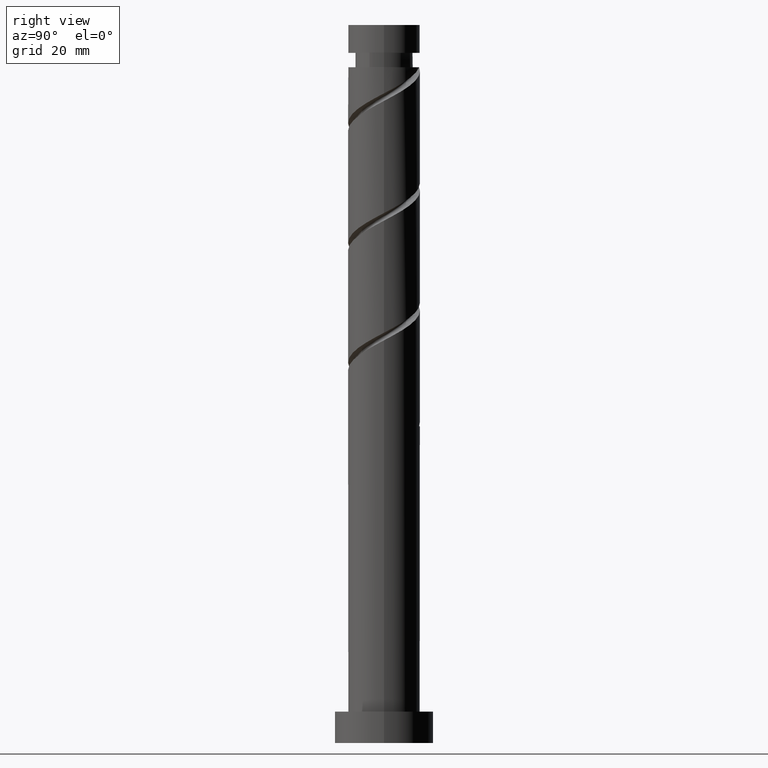
[diagram: clean part render]
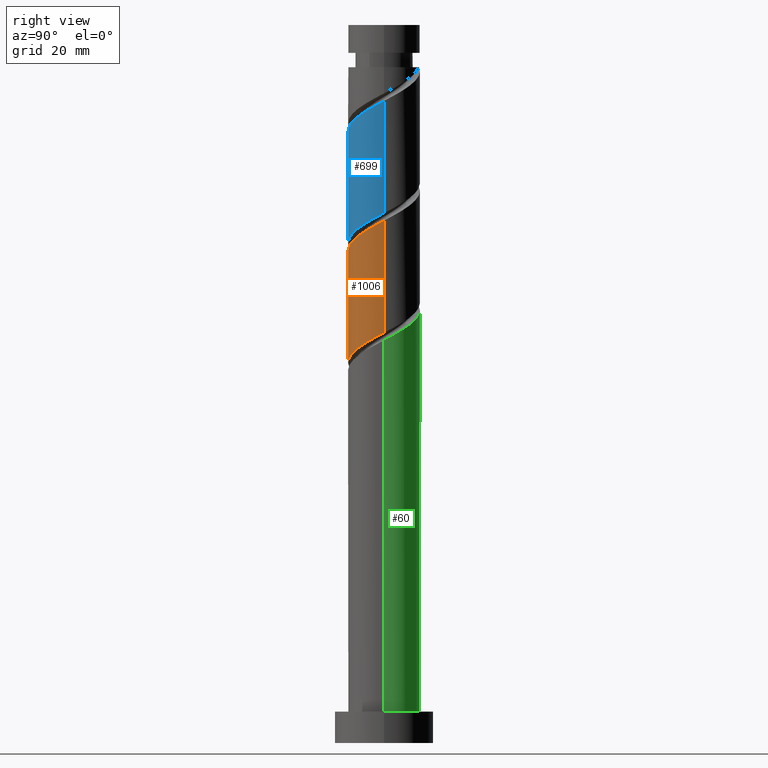
[diagram: same view with three faces highlighted in distinct colors, each labeled with its STEP entity id]
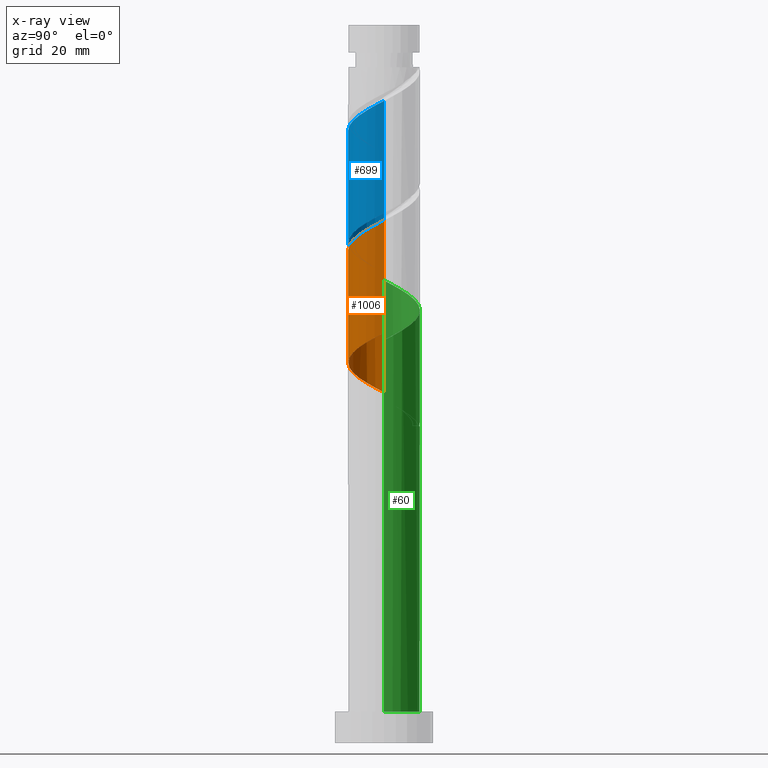
[diagram: x-ray of the same camera — body ghosted, the three highlighted faces saturated]
A machine part, right view with three faces highlighted in distinct colors.
The next image is the same camera in x-ray (body ghosted, the three faces saturated) — at least one of them is partly hidden behind the body in this view.
Their STEP definitions:

[orange] entity #1006 — the highlighted cylindrical surface (edge-blend (fillet) strip) has radius 8 mm, axis along (-0, -0, -1).
#30 = CARTESIAN_POINT ( 'NONE',  ( 4.882551537609416847, -6.337246285460896189, 87.55918416526581893 ) ) ;
#64 = CARTESIAN_POINT ( 'NONE',  ( -4.882551537609425729, -6.337246285460905071, 106.9531235592051956 ) ) ;
#71 = CARTESIAN_POINT ( 'NONE',  ( 5.577882723393632780, -5.734738383227871772, 113.0137296198112580 ) ) ;
#101 = CYLINDRICAL_SURFACE ( 'NONE', #511, 8.000000000000000000 ) ;
#128 = VERTEX_POINT ( 'NONE', #589 ) ;
#147 = CARTESIAN_POINT ( 'NONE',  ( 3.971393078059867854, -7.039251215880911516, 86.95312355920522407 ) ) ;
#164 = CARTESIAN_POINT ( 'NONE',  ( 2.899365294310145114, -7.456117011565057240, 86.34706295314458657 ) ) ;
#178 = CARTESIAN_POINT ( 'NONE',  ( -7.986762466259771820, -0.4600275073779067081, 103.3167599228415696 ) ) ;
#194 = CARTESIAN_POINT ( 'NONE',  ( 3.736276773218410341, -7.073912345647833000, 111.8016084076900114 ) ) ;
#200 = CARTESIAN_POINT ( 'NONE',  ( 7.532789951889100166, -2.929180124448060418, 114.8319114379930710 ) ) ;
#255 = CARTESIAN_POINT ( 'NONE',  ( -4.753351822145628347, -6.536716845301434375, 82.10463871072037989 ) ) ;
#274 = CARTESIAN_POINT ( 'NONE',  ( 5.793709997158966729, -5.635241355040879085, 88.16524477132642801 ) ) ;
#288 = EDGE_CURVE ( 'NONE', #1253, #128, #1493, .T. ) ;
#302 = CARTESIAN_POINT ( 'NONE',  ( -8.000000000000000000, 0.000000000000000000, 160.0000000000000000 ) ) ;
#323 = CARTESIAN_POINT ( 'NONE',  ( -1.827337510560426148, -7.872982807249216286, 108.7713053773870371 ) ) ;
#330 = CARTESIAN_POINT ( 'NONE',  ( -3.971393078059877180, -7.039251215880920398, 107.5591841652657905 ) ) ;
#342 = DIRECTION ( 'NONE',  ( -1.000000000000000000, 0.000000000000000000, 0.000000000000000000 ) ) ;
#359 = VERTEX_POINT ( 'NONE', #496 ) ;
#383 = CARTESIAN_POINT ( 'NONE',  ( 8.000000000000001776, -0.2302042121905966410, 91.31684367015148496 ) ) ;
#407 = CARTESIAN_POINT ( 'NONE',  ( -0.4647580744500044991, -8.068892154005792960, 84.52888113496274514 ) ) ;
#416 = CARTESIAN_POINT ( 'NONE',  ( -6.402413624641619450, -4.932759921154289628, 80.89251749859911911 ) ) ;
#441 = LINE ( 'NONE', #302, #1503 ) ;
#473 = DIRECTION ( 'NONE',  ( -0.000000000000000000, -0.000000000000000000, -1.000000000000000000 ) ) ;
#496 = CARTESIAN_POINT ( 'NONE',  ( -8.000000000000012434, -5.324628170444731616E-15, 103.0733660496012618 ) ) ;
#506 = ORIENTED_EDGE ( 'NONE', *, *, #980, .F. ) ;
#511 = AXIS2_PLACEMENT_3D ( 'NONE', #1629, #473, #342 ) ;
#528 = CARTESIAN_POINT ( 'NONE',  ( -1.591979899370594476, -7.840000000000000746, 83.92282052890215027 ) ) ;
#548 = CARTESIAN_POINT ( 'NONE',  ( -6.967601788265351814, -3.930970022801174135, 80.28645689253851003 ) ) ;
#555 = CARTESIAN_POINT ( 'NONE',  ( 4.753351822145639005, -6.536716845301444145, 112.4076690137506631 ) ) ;
#585 = DIRECTION ( 'NONE',  ( -0.000000000000000000, -0.000000000000000000, -1.000000000000000000 ) ) ;
#589 = CARTESIAN_POINT ( 'NONE',  ( 8.000000000000000000, -9.183487911946886666E-15, 91.43894167486969593 ) ) ;
#598 = ORIENTED_EDGE ( 'NONE', *, *, #796, .F. ) ;
#643 = EDGE_LOOP ( 'NONE', ( #1239, #506, #750, #598 ) ) ;
#662 = CARTESIAN_POINT ( 'NONE',  ( 7.533637742433263895, -2.691524171503018259, 89.98342658950821260 ) ) ;
#671 = CARTESIAN_POINT ( 'NONE',  ( 6.470182492983646227, -4.704969554363545470, 88.77130537738702287 ) ) ;
#720 = CARTESIAN_POINT ( 'NONE',  ( 7.792847194175212877, -1.808737849506034889, 115.4379720440536943 ) ) ;
#750 = ORIENTED_EDGE ( 'NONE', *, *, #932, .T. ) ;
#767 = CARTESIAN_POINT ( 'NONE',  ( 8.000000000000014211, -0.9162314190809818237, 115.9207394299632767 ) ) ;
#776 = CARTESIAN_POINT ( 'NONE',  ( -7.532789951889085067, -2.929180124448055089, 79.68039628647792938 ) ) ;
#796 = EDGE_CURVE ( 'NONE', #128, #961, #930, .T. ) ;
#800 = CARTESIAN_POINT ( 'NONE',  ( -8.000000000000000000, -0.9162314190809786041, 78.59156829450766679 ) ) ;
#808 = CARTESIAN_POINT ( 'NONE',  ( 7.146654988808328390, -3.774697753686215851, 89.37736598344761774 ) ) ;
#825 = CARTESIAN_POINT ( 'NONE',  ( -6.470182492983659550, -4.704969554363554352, 105.7410023470839775 ) ) ;
#841 = CARTESIAN_POINT ( 'NONE',  ( 0.4647580744500016126, -8.068892154005805395, 109.9834265895082268 ) ) ;
#846 = CARTESIAN_POINT ( 'NONE',  ( 6.967601788265361584, -3.930970022801182573, 114.2258508319325045 ) ) ;
#891 = CARTESIAN_POINT ( 'NONE',  ( 8.000000000000000000, 9.797174393178825657E-16, 160.0000000000000000 ) ) ;
#912 = CARTESIAN_POINT ( 'NONE',  ( 1.827337510560423262, -7.872982807249202075, 85.74100234708396329 ) ) ;
#930 =( BOUNDED_CURVE ( )  B_SPLINE_CURVE ( 2, ( #1050, #383, #1431, #1306, #662, #808, #671, #274, #30, #147, #164, #912, #1181, #407, #528, #1447, #1560, #255, #1041, #416, #548, #776, #1549, #800, #1059 ),
 .UNSPECIFIED., .F., .T. ) 
 B_SPLINE_CURVE_WITH_KNOTS ( ( 3, 2, 2, 2, 2, 2, 2, 2, 2, 2, 2, 2, 3 ),
 ( 0.8045252162417514397, 0.8068181818181817677, 0.8181818181818182323, 0.8295454545454545858, 0.8409090909090909394, 0.8522727272727272929, 0.8636363636363636465, 0.8750000000000000000, 0.8863636363636363535, 0.8977272727272727071, 0.9090909090909090606, 0.9204545454545454142, 0.9295252162417513286 ),
 .UNSPECIFIED. ) 
 CURVE ( )  GEOMETRIC_REPRESENTATION_ITEM ( )  RATIONAL_B_SPLINE_CURVE ( ( 0.9061101570135516869, 0.9072237824201337952, 0.9090909090909111701, 0.8998376744372136304, 0.9090909090909111701, 0.8998376744372136304, 0.9090909090909111701, 0.8998376744372136304, 0.9090909090909111701, 0.8998376744372136304, 0.9090909090909111701, 0.8998376744372136304, 0.9090909090909111701, 0.8998376744372136304, 0.9090909090909111701, 0.8998376744372136304, 0.9090909090909111701, 0.8998376744372136304, 0.9090909090909111701, 0.8998376744372136304, 0.9090909090909111701, 0.8998376744372136304, 0.9090909090909111701, 0.9017048011079911163, 0.9061101570135515759 ) ) 
 REPRESENTATION_ITEM ( '' )  );
#932 = EDGE_CURVE ( 'NONE', #359, #961, #441, .T. ) ;
#958 = CARTESIAN_POINT ( 'NONE',  ( -0.6812897180552121013, -7.970937480627512173, 109.3773659834476035 ) ) ;
#961 = VERTEX_POINT ( 'NONE', #1220 ) ;
#966 = CARTESIAN_POINT ( 'NONE',  ( 1.591979899370593365, -7.840000000000012292, 110.5894871955688217 ) ) ;
#980 = EDGE_CURVE ( 'NONE', #359, #1253, #1104, .T. ) ;
#1006 = ADVANCED_FACE ( 'NONE', ( #1490 ), #101, .T. ) ;
#1029 = VECTOR ( 'NONE', #1526, 1000.000000000000000 ) ;
#1041 = CARTESIAN_POINT ( 'NONE',  ( -5.577882723393626563, -5.734738383227862002, 81.49857810465975660 ) ) ;
#1050 = CARTESIAN_POINT ( 'NONE',  ( 8.000000000000000000, -9.183487911946886666E-15, 91.43894167486969593 ) ) ;
#1059 = CARTESIAN_POINT ( 'NONE',  ( -8.000000000000000000, 7.508323993155271420E-15, 78.10560834153638154 ) ) ;
#1092 = CARTESIAN_POINT ( 'NONE',  ( -7.533637742433276330, -2.691524171503020924, 104.5288811349627593 ) ) ;
#1104 =( BOUNDED_CURVE ( )  B_SPLINE_CURVE ( 2, ( #1584, #1234, #178, #1464, #1092, #1206, #825, #1338, #64, #330, #1598, #323, #958, #841, #966, #1354, #194, #555, #71, #1485, #846, #200, #720, #767, #1395 ),
 .UNSPECIFIED., .F., .T. ) 
 B_SPLINE_CURVE_WITH_KNOTS ( ( 3, 2, 2, 2, 2, 2, 2, 2, 2, 2, 2, 2, 3 ),
 ( 0.3045252162417512731, 0.3068181818181817677, 0.3181818181818182323, 0.3295454545454545858, 0.3409090909090909394, 0.3522727272727272929, 0.3636363636363636465, 0.3750000000000000000, 0.3863636363636363535, 0.3977272727272727071, 0.4090909090909090606, 0.4204545454545454142, 0.4295252162417513286 ),
 .UNSPECIFIED. ) 
 CURVE ( )  GEOMETRIC_REPRESENTATION_ITEM ( )  RATIONAL_B_SPLINE_CURVE ( ( 0.9061101570135589034, 0.9072237824201411227, 0.9090909090909186085, 0.8998376744372208469, 0.9090909090909186085, 0.8998376744372208469, 0.9090909090909186085, 0.8998376744372208469, 0.9090909090909186085, 0.8998376744372208469, 0.9090909090909186085, 0.8998376744372208469, 0.9090909090909186085, 0.8998376744372208469, 0.9090909090909186085, 0.8998376744372208469, 0.9090909090909186085, 0.8998376744372208469, 0.9090909090909186085, 0.8998376744372208469, 0.9090909090909186085, 0.8998376744372208469, 0.9090909090909186085, 0.9017048011079983327, 0.9061101570135590144 ) ) 
 REPRESENTATION_ITEM ( '' )  );
#1181 = CARTESIAN_POINT ( 'NONE',  ( 0.6812897180552074383, -7.970937480627497074, 85.13494174102338263 ) ) ;
#1206 = CARTESIAN_POINT ( 'NONE',  ( -7.146654988808340825, -3.774697753686220736, 105.1349417410233826 ) ) ;
#1220 = CARTESIAN_POINT ( 'NONE',  ( -8.000000000000000000, 7.508323993155271420E-15, 78.10560834153638154 ) ) ;
#1234 = CARTESIAN_POINT ( 'NONE',  ( -8.000000000000014211, -0.2302042121905765182, 103.1954640543194870 ) ) ;
#1239 = ORIENTED_EDGE ( 'NONE', *, *, #288, .F. ) ;
#1253 = VERTEX_POINT ( 'NONE', #1420 ) ;
#1306 = CARTESIAN_POINT ( 'NONE',  ( 7.920620496058202953, -1.608350589319822221, 90.58948719556882168 ) ) ;
#1338 = CARTESIAN_POINT ( 'NONE',  ( -5.793709997158975611, -5.635241355040887967, 106.3470629531445724 ) ) ;
#1354 = CARTESIAN_POINT ( 'NONE',  ( 2.719201724291186117, -7.611107845994222743, 111.1955478016294308 ) ) ;
#1395 = CARTESIAN_POINT ( 'NONE',  ( 8.000000000000012434, 4.935750832153824991E-15, 116.4066993829346046 ) ) ;
#1420 = CARTESIAN_POINT ( 'NONE',  ( 8.000000000000012434, 4.935750832153824202E-15, 116.4066993829346046 ) ) ;
#1431 = CARTESIAN_POINT ( 'NONE',  ( 7.986762466259759385, -0.4600275073779094837, 91.19554780162941654 ) ) ;
#1447 = CARTESIAN_POINT ( 'NONE',  ( -2.719201724291183453, -7.611107845994205867, 83.31675992284155541 ) ) ;
#1464 = CARTESIAN_POINT ( 'NONE',  ( -7.920620496058218052, -1.608350589319821777, 103.9228205289021645 ) ) ;
#1485 = CARTESIAN_POINT ( 'NONE',  ( 6.402413624641629220, -4.932759921154301175, 113.6197902258718528 ) ) ;
#1490 = FACE_OUTER_BOUND ( 'NONE', #643, .T. ) ;
#1493 = LINE ( 'NONE', #891, #1029 ) ;
#1503 = VECTOR ( 'NONE', #585, 1000.000000000000000 ) ;
#1526 = DIRECTION ( 'NONE',  ( -0.000000000000000000, -0.000000000000000000, -1.000000000000000000 ) ) ;
#1549 = CARTESIAN_POINT ( 'NONE',  ( -7.792847194175199554, -1.808737849506030448, 79.07433568041730609 ) ) ;
#1560 = CARTESIAN_POINT ( 'NONE',  ( -3.736276773218406788, -7.073912345647821454, 82.71069931678096054 ) ) ;
#1584 = CARTESIAN_POINT ( 'NONE',  ( -8.000000000000012434, -5.324628170444731616E-15, 103.0733660496012618 ) ) ;
#1598 = CARTESIAN_POINT ( 'NONE',  ( -2.899365294310152219, -7.456117011565067898, 108.1652447713263854 ) ) ;
#1629 = CARTESIAN_POINT ( 'NONE',  ( 0.000000000000000000, 0.000000000000000000, 160.0000000000000000 ) ) ;

[blue] entity #699 — the highlighted cylindrical surface (edge-blend (fillet) strip) has radius 8 mm, axis along (-0, -0, -1).
#27 = VECTOR ( 'NONE', #94, 1000.000000000000000 ) ;
#50 = CARTESIAN_POINT ( 'NONE',  ( -4.882551537609425729, -6.337246285460905071, 133.6197902258718955 ) ) ;
#94 = DIRECTION ( 'NONE',  ( -0.000000000000000000, -0.000000000000000000, -1.000000000000000000 ) ) ;
#103 = CARTESIAN_POINT ( 'NONE',  ( 6.470182492983646227, -4.704969554363545470, 115.4379720440536943 ) ) ;
#115 = CARTESIAN_POINT ( 'NONE',  ( -6.402413624641619450, -4.932759921154289628, 107.5591841652658189 ) ) ;
#130 = CARTESIAN_POINT ( 'NONE',  ( -7.532789951889085067, -2.929180124448055089, 106.3470629531445866 ) ) ;
#134 = VECTOR ( 'NONE', #1137, 1000.000000000000000 ) ;
#190 = CARTESIAN_POINT ( 'NONE',  ( -5.793709997158975611, -5.635241355040887967, 133.0137296198112153 ) ) ;
#191 = EDGE_CURVE ( 'NONE', #1401, #1109, #1573, .T. ) ;
#197 = CARTESIAN_POINT ( 'NONE',  ( -0.6812897180552121013, -7.970937480627512173, 136.0440326501142465 ) ) ;
#203 = CARTESIAN_POINT ( 'NONE',  ( 5.577882723393632780, -5.734738383227871772, 139.6803962864779578 ) ) ;
#240 = CARTESIAN_POINT ( 'NONE',  ( -5.577882723393626563, -5.734738383227862002, 108.1652447713264138 ) ) ;
#248 = CARTESIAN_POINT ( 'NONE',  ( 8.000000000000001776, -0.2302042121905854000, 117.9835103368181848 ) ) ;
#276 = VERTEX_POINT ( 'NONE', #1650 ) ;
#284 = DIRECTION ( 'NONE',  ( -0.000000000000000000, -0.000000000000000000, -1.000000000000000000 ) ) ;
#364 = CARTESIAN_POINT ( 'NONE',  ( 1.827337510560423262, -7.872982807249202075, 112.4076690137506631 ) ) ;
#445 = CARTESIAN_POINT ( 'NONE',  ( -7.920620496058218052, -1.608350589319821777, 130.5894871955688359 ) ) ;
#535 = EDGE_CURVE ( 'NONE', #1109, #276, #996, .T. ) ;
#565 = CARTESIAN_POINT ( 'NONE',  ( -2.899365294310152219, -7.456117011565067898, 134.8319114379930568 ) ) ;
#621 = CARTESIAN_POINT ( 'NONE',  ( 3.971393078059867854, -7.039251215880911516, 113.6197902258718671 ) ) ;
#630 = LINE ( 'NONE', #1262, #134 ) ;
#632 = CARTESIAN_POINT ( 'NONE',  ( -6.967601788265351814, -3.930970022801174135, 106.9531235592052099 ) ) ;
#640 = CARTESIAN_POINT ( 'NONE',  ( 8.000000000000000000, 9.797174393178825657E-16, 160.0000000000000000 ) ) ;
#689 = EDGE_CURVE ( 'NONE', #276, #1521, #764, .T. ) ;
#692 = CARTESIAN_POINT ( 'NONE',  ( -7.986762466259771820, -0.4600275073779067081, 129.9834265895082126 ) ) ;
#699 = ADVANCED_FACE ( 'NONE', ( #783 ), #1314, .T. ) ;
#700 = CARTESIAN_POINT ( 'NONE',  ( 6.967601788265361584, -3.930970022801182573, 140.8925174985991475 ) ) ;
#717 = CARTESIAN_POINT ( 'NONE',  ( 7.792847194175212877, -1.808737849506034889, 142.1046387107203088 ) ) ;
#729 = CARTESIAN_POINT ( 'NONE',  ( 0.6812897180552074383, -7.970937480627497074, 111.8016084076900540 ) ) ;
#764 =( BOUNDED_CURVE ( )  B_SPLINE_CURVE ( 2, ( #1492, #248, #769, #1157, #1118, #854, #103, #1518, #1369, #621, #1640, #364, #729, #1249, #985, #1500, #880, #1397, #240, #115, #632, #130, #1189, #897, #904 ),
 .UNSPECIFIED., .F., .T. ) 
 B_SPLINE_CURVE_WITH_KNOTS ( ( 3, 2, 2, 2, 2, 2, 2, 2, 2, 2, 2, 2, 3 ),
 ( 0.5545252162417513286, 0.5568181818181817677, 0.5681818181818182323, 0.5795454545454545858, 0.5909090909090909394, 0.6022727272727272929, 0.6136363636363636465, 0.6250000000000000000, 0.6363636363636363535, 0.6477272727272727071, 0.6590909090909090606, 0.6704545454545454142, 0.6795252162417513286 ),
 .UNSPECIFIED. ) 
 CURVE ( )  GEOMETRIC_REPRESENTATION_ITEM ( )  RATIONAL_B_SPLINE_CURVE ( ( 0.9061101570135515759, 0.9072237824201336842, 0.9090909090909111701, 0.8998376744372136304, 0.9090909090909111701, 0.8998376744372136304, 0.9090909090909111701, 0.8998376744372136304, 0.9090909090909111701, 0.8998376744372136304, 0.9090909090909111701, 0.8998376744372136304, 0.9090909090909111701, 0.8998376744372136304, 0.9090909090909111701, 0.8998376744372136304, 0.9090909090909111701, 0.8998376744372136304, 0.9090909090909111701, 0.8998376744372136304, 0.9090909090909111701, 0.8998376744372136304, 0.9090909090909111701, 0.9017048011079911163, 0.9061101570135515759 ) ) 
 REPRESENTATION_ITEM ( '' )  );
#769 = CARTESIAN_POINT ( 'NONE',  ( 7.986762466259759385, -0.4600275073779094837, 117.8622144682961022 ) ) ;
#783 = FACE_OUTER_BOUND ( 'NONE', #1383, .T. ) ;
#828 = CARTESIAN_POINT ( 'NONE',  ( -7.146654988808340825, -3.774697753686220736, 131.8016084076900540 ) ) ;
#836 = CARTESIAN_POINT ( 'NONE',  ( 3.736276773218410341, -7.073912345647833000, 138.4682750743567112 ) ) ;
#849 = CARTESIAN_POINT ( 'NONE',  ( -8.000000000000012434, -5.324628170444731616E-15, 129.7400327162679332 ) ) ;
#854 = CARTESIAN_POINT ( 'NONE',  ( 7.146654988808328390, -3.774697753686215851, 116.0440326501142749 ) ) ;
#860 = CARTESIAN_POINT ( 'NONE',  ( 8.000000000000012434, 4.935750832153824202E-15, 143.0733660496012476 ) ) ;
#866 = ORIENTED_EDGE ( 'NONE', *, *, #689, .F. ) ;
#880 = CARTESIAN_POINT ( 'NONE',  ( -3.736276773218406788, -7.073912345647821454, 109.3773659834476035 ) ) ;
#897 = CARTESIAN_POINT ( 'NONE',  ( -8.000000000000000000, -0.9162314190809786041, 105.2582349611743382 ) ) ;
#904 = CARTESIAN_POINT ( 'NONE',  ( -8.000000000000000000, 7.508323993155271420E-15, 104.7722750082030387 ) ) ;
#946 = CARTESIAN_POINT ( 'NONE',  ( -7.533637742433276330, -2.691524171503020924, 131.1955478016294592 ) ) ;
#985 = CARTESIAN_POINT ( 'NONE',  ( -1.591979899370594476, -7.840000000000000746, 110.5894871955688217 ) ) ;
#996 = LINE ( 'NONE', #640, #27 ) ;
#1079 = CARTESIAN_POINT ( 'NONE',  ( 6.402413624641629220, -4.932759921154301175, 140.2864568925384674 ) ) ;
#1095 = CARTESIAN_POINT ( 'NONE',  ( 8.000000000000012434, -0.9162314190809907055, 142.5874060966299339 ) ) ;
#1096 = CARTESIAN_POINT ( 'NONE',  ( -8.000000000000000000, 7.508323993155271420E-15, 104.7722750082030387 ) ) ;
#1101 = CARTESIAN_POINT ( 'NONE',  ( -3.971393078059877180, -7.039251215880920398, 134.2258508319324619 ) ) ;
#1109 = VERTEX_POINT ( 'NONE', #860 ) ;
#1118 = CARTESIAN_POINT ( 'NONE',  ( 7.533637742433263895, -2.691524171503018259, 116.6500932561748840 ) ) ;
#1135 = EDGE_CURVE ( 'NONE', #1401, #1521, #630, .T. ) ;
#1137 = DIRECTION ( 'NONE',  ( -0.000000000000000000, -0.000000000000000000, -1.000000000000000000 ) ) ;
#1157 = CARTESIAN_POINT ( 'NONE',  ( 7.920620496058202953, -1.608350589319822221, 117.2561538622355073 ) ) ;
#1164 = AXIS2_PLACEMENT_3D ( 'NONE', #1440, #284, #1423 ) ;
#1189 = CARTESIAN_POINT ( 'NONE',  ( -7.792847194175199554, -1.808737849506030448, 105.7410023470839775 ) ) ;
#1216 = CARTESIAN_POINT ( 'NONE',  ( 8.000000000000012434, 4.935750832153824202E-15, 143.0733660496012476 ) ) ;
#1249 = CARTESIAN_POINT ( 'NONE',  ( -0.4647580744500044991, -8.068892154005792960, 111.1955478016294308 ) ) ;
#1262 = CARTESIAN_POINT ( 'NONE',  ( -8.000000000000000000, 0.000000000000000000, 160.0000000000000000 ) ) ;
#1297 = ORIENTED_EDGE ( 'NONE', *, *, #191, .F. ) ;
#1314 = CYLINDRICAL_SURFACE ( 'NONE', #1164, 8.000000000000000000 ) ;
#1334 = CARTESIAN_POINT ( 'NONE',  ( -8.000000000000014211, -0.2302042121905732430, 129.8621307209861584 ) ) ;
#1342 = CARTESIAN_POINT ( 'NONE',  ( -1.827337510560426148, -7.872982807249216286, 135.4379720440536801 ) ) ;
#1365 = CARTESIAN_POINT ( 'NONE',  ( 2.719201724291186117, -7.611107845994222743, 137.8622144682960879 ) ) ;
#1369 = CARTESIAN_POINT ( 'NONE',  ( 4.882551537609416847, -6.337246285460896189, 114.2258508319324903 ) ) ;
#1383 = EDGE_LOOP ( 'NONE', ( #1552, #1297, #1538, #866 ) ) ;
#1397 = CARTESIAN_POINT ( 'NONE',  ( -4.753351822145628347, -6.536716845301434375, 108.7713053773870513 ) ) ;
#1401 = VERTEX_POINT ( 'NONE', #1438 ) ;
#1423 = DIRECTION ( 'NONE',  ( -1.000000000000000000, 0.000000000000000000, 0.000000000000000000 ) ) ;
#1438 = CARTESIAN_POINT ( 'NONE',  ( -8.000000000000012434, -5.324628170444731616E-15, 129.7400327162679332 ) ) ;
#1440 = CARTESIAN_POINT ( 'NONE',  ( 0.000000000000000000, 0.000000000000000000, 160.0000000000000000 ) ) ;
#1458 = CARTESIAN_POINT ( 'NONE',  ( 0.4647580744500016126, -8.068892154005805395, 136.6500932561749266 ) ) ;
#1474 = CARTESIAN_POINT ( 'NONE',  ( -6.470182492983659550, -4.704969554363554352, 132.4076690137506205 ) ) ;
#1492 = CARTESIAN_POINT ( 'NONE',  ( 8.000000000000000000, -9.183487911946886666E-15, 118.1056083415363815 ) ) ;
#1500 = CARTESIAN_POINT ( 'NONE',  ( -2.719201724291183453, -7.611107845994205867, 109.9834265895082268 ) ) ;
#1518 = CARTESIAN_POINT ( 'NONE',  ( 5.793709997158966729, -5.635241355040879085, 114.8319114379930710 ) ) ;
#1521 = VERTEX_POINT ( 'NONE', #1096 ) ;
#1538 = ORIENTED_EDGE ( 'NONE', *, *, #1135, .T. ) ;
#1552 = ORIENTED_EDGE ( 'NONE', *, *, #535, .F. ) ;
#1573 =( BOUNDED_CURVE ( )  B_SPLINE_CURVE ( 2, ( #849, #1334, #692, #445, #946, #828, #1474, #190, #50, #1101, #565, #1342, #197, #1458, #1609, #1365, #836, #1602, #203, #1079, #700, #1588, #717, #1095, #1216 ),
 .UNSPECIFIED., .F., .T. ) 
 B_SPLINE_CURVE_WITH_KNOTS ( ( 3, 2, 2, 2, 2, 2, 2, 2, 2, 2, 2, 2, 3 ),
 ( 0.5545252162417513286, 0.5568181818181818787, 0.5681818181818181213, 0.5795454545454545858, 0.5909090909090908283, 0.6022727272727272929, 0.6136363636363636465, 0.6250000000000000000, 0.6363636363636363535, 0.6477272727272727071, 0.6590909090909091717, 0.6704545454545454142, 0.6795252162417513286 ),
 .UNSPECIFIED. ) 
 CURVE ( )  GEOMETRIC_REPRESENTATION_ITEM ( )  RATIONAL_B_SPLINE_CURVE ( ( 0.9061101570135589034, 0.9072237824201410117, 0.9090909090909186085, 0.8998376744372208469, 0.9090909090909186085, 0.8998376744372208469, 0.9090909090909186085, 0.8998376744372208469, 0.9090909090909186085, 0.8998376744372208469, 0.9090909090909186085, 0.8998376744372208469, 0.9090909090909186085, 0.8998376744372208469, 0.9090909090909186085, 0.8998376744372208469, 0.9090909090909186085, 0.8998376744372208469, 0.9090909090909186085, 0.8998376744372208469, 0.9090909090909186085, 0.8998376744372208469, 0.9090909090909186085, 0.9017048011079984438, 0.9061101570135589034 ) ) 
 REPRESENTATION_ITEM ( '' )  );
#1588 = CARTESIAN_POINT ( 'NONE',  ( 7.532789951889100166, -2.929180124448060418, 141.4985781046597140 ) ) ;
#1602 = CARTESIAN_POINT ( 'NONE',  ( 4.753351822145639005, -6.536716845301444145, 139.0743356804173345 ) ) ;
#1609 = CARTESIAN_POINT ( 'NONE',  ( 1.591979899370593365, -7.840000000000012292, 137.2561538622354647 ) ) ;
#1640 = CARTESIAN_POINT ( 'NONE',  ( 2.899365294310145114, -7.456117011565057240, 113.0137296198112580 ) ) ;
#1650 = CARTESIAN_POINT ( 'NONE',  ( 8.000000000000000000, -9.183487911946886666E-15, 118.1056083415363815 ) ) ;

[green] entity #60 — the highlighted cylindrical surface (edge-blend (fillet) strip) has radius 8 mm, axis along (-0, -0, -1).
#8 = CARTESIAN_POINT ( 'NONE',  ( 8.000000000000012434, 4.935750832153824202E-15, 89.74003271626796163 ) ) ;
#34 = DIRECTION ( 'NONE',  ( -1.000000000000000000, 0.000000000000000000, 0.000000000000000000 ) ) ;
#60 = ADVANCED_FACE ( 'NONE', ( #804 ), #916, .T. ) ;
#116 = CARTESIAN_POINT ( 'NONE',  ( 8.000000000000000000, 9.797174393178825657E-16, 7.000000000000000000 ) ) ;
#123 = CARTESIAN_POINT ( 'NONE',  ( -7.920620496058202953, 1.608350589319821333, 77.25615386223550729 ) ) ;
#125 = ORIENTED_EDGE ( 'NONE', *, *, #1339, .T. ) ;
#127 = LINE ( 'NONE', #1279, #1455 ) ;
#136 = CARTESIAN_POINT ( 'NONE',  ( 7.986762466259771820, 0.4600275073779058754, 89.98342658950824102 ) ) ;
#142 = EDGE_CURVE ( 'NONE', #279, #280, #705, .T. ) ;
#145 = CARTESIAN_POINT ( 'NONE',  ( -8.000000000000012434, -5.324628170444731616E-15, 103.0733660496012618 ) ) ;
#153 = DIRECTION ( 'NONE',  ( -0.000000000000000000, -0.000000000000000000, -1.000000000000000000 ) ) ;
#189 = AXIS2_PLACEMENT_3D ( 'NONE', #1595, #1467, #1482 ) ;
#214 = CARTESIAN_POINT ( 'NONE',  ( -2.899365294310145114, 7.456117011565057240, 73.01372961981124377 ) ) ;
#225 = ORIENTED_EDGE ( 'NONE', *, *, #1247, .F. ) ;
#253 = CARTESIAN_POINT ( 'NONE',  ( -1.591979899370592699, 7.840000000000012292, 97.25615386223552150 ) ) ;
#279 = VERTEX_POINT ( 'NONE', #116 ) ;
#280 = VERTEX_POINT ( 'NONE', #1018 ) ;
#282 = CARTESIAN_POINT ( 'NONE',  ( -7.792847194175211101, 1.808737849506035777, 102.1046387107203373 ) ) ;
#290 = CARTESIAN_POINT ( 'NONE',  ( -0.4647580744500005578, 8.068892154005805395, 96.65009325617489822 ) ) ;
#302 = CARTESIAN_POINT ( 'NONE',  ( -8.000000000000000000, 0.000000000000000000, 160.0000000000000000 ) ) ;
#333 = EDGE_CURVE ( 'NONE', #961, #480, #538, .T. ) ;
#347 = CARTESIAN_POINT ( 'NONE',  ( -7.532789951889097502, 2.929180124448063083, 74.83191143799305678 ) ) ;
#354 = EDGE_CURVE ( 'NONE', #1418, #874, #418, .T. ) ;
#359 = VERTEX_POINT ( 'NONE', #496 ) ;
#367 = CARTESIAN_POINT ( 'NONE',  ( -0.6812897180552097698, 7.970937480627497074, 71.80160840769003983 ) ) ;
#374 = CARTESIAN_POINT ( 'NONE',  ( -5.793709997158964953, 5.635241355040879974, 74.83191143799305678 ) ) ;
#389 = CARTESIAN_POINT ( 'NONE',  ( 8.000000000000014211, 0.2302042121905786831, 89.86213072098617261 ) ) ;
#414 = CARTESIAN_POINT ( 'NONE',  ( -8.000000000000012434, 0.9162314190809878189, 102.5874060966299481 ) ) ;
#418 =( BOUNDED_CURVE ( )  B_SPLINE_CURVE ( 2, ( #476, #1158, #613, #1501, #1008, #1623, #1380, #347, #1130, #770, #1632 ),
 .UNSPECIFIED., .F., .T. ) 
 B_SPLINE_CURVE_WITH_KNOTS ( ( 3, 2, 2, 2, 2, 3 ),
 ( 0.000000000000000000, 0.01136363636363635354, 0.02272727272727270709, 0.03409090909090906063, 0.04545454545454541417, 0.05452521624175133558 ),
 .UNSPECIFIED. ) 
 CURVE ( )  GEOMETRIC_REPRESENTATION_ITEM ( )  RATIONAL_B_SPLINE_CURVE ( ( 0.9090909090909186085, 0.8998376744372208469, 0.9090909090909186085, 0.8998376744372208469, 0.9090909090909186085, 0.8998376744372208469, 0.9090909090909186085, 0.8998376744372208469, 0.9090909090909186085, 0.9017048011079983327, 0.9061101570135590144 ) ) 
 REPRESENTATION_ITEM ( '' )  );
#430 = ORIENTED_EDGE ( 'NONE', *, *, #333, .F. ) ;
#441 = LINE ( 'NONE', #302, #1503 ) ;
#476 = CARTESIAN_POINT ( 'NONE',  ( -1.591979899370592699, 7.840000000000012292, 70.58948719556883589 ) ) ;
#480 = VERTEX_POINT ( 'NONE', #1257 ) ;
#488 = ORIENTED_EDGE ( 'NONE', *, *, #354, .F. ) ;
#496 = CARTESIAN_POINT ( 'NONE',  ( -8.000000000000012434, -5.324628170444731616E-15, 103.0733660496012618 ) ) ;
#518 = CARTESIAN_POINT ( 'NONE',  ( -7.532789951889097502, 2.929180124448063083, 101.4985781046597566 ) ) ;
#538 =( BOUNDED_CURVE ( )  B_SPLINE_CURVE ( 2, ( #1511, #998, #1275, #123, #1390, #986, #732, #374, #1265, #1141, #214, #1641, #367, #1250, #641 ),
 .UNSPECIFIED., .F., .T. ) 
 B_SPLINE_CURVE_WITH_KNOTS ( ( 3, 2, 2, 2, 2, 2, 2, 3 ),
 ( 0.9295252162417513286, 0.9318181818181817677, 0.9431818181818182323, 0.9545454545454545858, 0.9659090909090909394, 0.9772727272727272929, 0.9886363636363636465, 1.000000000000000000 ),
 .UNSPECIFIED. ) 
 CURVE ( )  GEOMETRIC_REPRESENTATION_ITEM ( )  RATIONAL_B_SPLINE_CURVE ( ( 0.9061101570135515759, 0.9072237824201336842, 0.9090909090909111701, 0.8998376744372136304, 0.9090909090909111701, 0.8998376744372136304, 0.9090909090909111701, 0.8998376744372136304, 0.9090909090909111701, 0.8998376744372136304, 0.9090909090909111701, 0.8998376744372136304, 0.9090909090909111701, 0.8998376744372136304, 0.9090909090909111701 ) ) 
 REPRESENTATION_ITEM ( '' )  );
#585 = DIRECTION ( 'NONE',  ( -0.000000000000000000, -0.000000000000000000, -1.000000000000000000 ) ) ;
#613 = CARTESIAN_POINT ( 'NONE',  ( -3.736276773218412561, 7.073912345647832112, 71.80160840769003983 ) ) ;
#627 = ORIENTED_EDGE ( 'NONE', *, *, #142, .T. ) ;
#641 = CARTESIAN_POINT ( 'NONE',  ( 1.591979899370594920, 7.840000000000000746, 70.58948719556883589 ) ) ;
#645 = CARTESIAN_POINT ( 'NONE',  ( 3.971393078059875403, 7.039251215880921286, 94.22585083193244770 ) ) ;
#653 = CARTESIAN_POINT ( 'NONE',  ( -3.736276773218412561, 7.073912345647832112, 98.46827507435669702 ) ) ;
#679 = DIRECTION ( 'NONE',  ( -1.000000000000000000, 0.000000000000000000, 0.000000000000000000 ) ) ;
#705 = CIRCLE ( 'NONE', #189, 8.000000000000000000 ) ;
#732 = CARTESIAN_POINT ( 'NONE',  ( -6.470182492983645339, 4.704969554363545470, 75.43797204405369428 ) ) ;
#744 = ORIENTED_EDGE ( 'NONE', *, *, #1288, .F. ) ;
#770 = CARTESIAN_POINT ( 'NONE',  ( -8.000000000000014211, 0.9162314190809813796, 75.92073942996329095 ) ) ;
#774 = CARTESIAN_POINT ( 'NONE',  ( 6.470182492983660438, 4.704969554363551687, 92.40766901375063469 ) ) ;
#781 = DIRECTION ( 'NONE',  ( -0.000000000000000000, -0.000000000000000000, -1.000000000000000000 ) ) ;
#798 = CARTESIAN_POINT ( 'NONE',  ( -8.000000000000000000, 0.000000000000000000, 160.0000000000000000 ) ) ;
#804 = FACE_OUTER_BOUND ( 'NONE', #1020, .T. ) ;
#816 = EDGE_CURVE ( 'NONE', #1418, #480, #991, .T. ) ;
#874 = VERTEX_POINT ( 'NONE', #1075 ) ;
#895 = CARTESIAN_POINT ( 'NONE',  ( 7.920620496058218052, 1.608350589319820667, 90.58948719556885010 ) ) ;
#902 = CARTESIAN_POINT ( 'NONE',  ( -6.402413624641630108, 4.932759921154300287, 100.2864568925385242 ) ) ;
#916 = CYLINDRICAL_SURFACE ( 'NONE', #1432, 8.000000000000000000 ) ;
#925 = CARTESIAN_POINT ( 'NONE',  ( 7.146654988808342601, 3.774697753686218071, 91.80160840769003983 ) ) ;
#927 = DIRECTION ( 'NONE',  ( 0.000000000000000000, -0.000000000000000000, -1.000000000000000000 ) ) ;
#932 = EDGE_CURVE ( 'NONE', #359, #961, #441, .T. ) ;
#961 = VERTEX_POINT ( 'NONE', #1220 ) ;
#986 = CARTESIAN_POINT ( 'NONE',  ( -7.146654988808328390, 3.774697753686216295, 76.04403265011428914 ) ) ;
#991 = CIRCLE ( 'NONE', #1661, 8.000000000000000000 ) ;
#998 = CARTESIAN_POINT ( 'NONE',  ( -8.000000000000001776, 0.2302042121905839567, 77.98351033681815636 ) ) ;
#1008 = CARTESIAN_POINT ( 'NONE',  ( -5.577882723393632780, 5.734738383227871772, 73.01372961981125798 ) ) ;
#1018 = CARTESIAN_POINT ( 'NONE',  ( -8.000000000000000000, 0.000000000000000000, 7.000000000000000000 ) ) ;
#1020 = EDGE_LOOP ( 'NONE', ( #225, #125, #627, #744, #488, #1643, #430, #1361 ) ) ;
#1022 = CARTESIAN_POINT ( 'NONE',  ( -1.591979899370592699, 7.840000000000012292, 70.58948719556883589 ) ) ;
#1032 = CARTESIAN_POINT ( 'NONE',  ( -6.967601788265361584, 3.930970022801182129, 100.8925174985991191 ) ) ;
#1039 = CARTESIAN_POINT ( 'NONE',  ( -2.719201724291188338, 7.611107845994219190, 97.86221446829611637 ) ) ;
#1047 = CARTESIAN_POINT ( 'NONE',  ( 7.533637742433276330, 2.691524171503018703, 91.19554780162947338 ) ) ;
#1075 = CARTESIAN_POINT ( 'NONE',  ( -8.000000000000012434, -5.324628170444731616E-15, 76.40669938293459040 ) ) ;
#1130 = CARTESIAN_POINT ( 'NONE',  ( -7.792847194175211101, 1.808737849506035777, 75.43797204405366585 ) ) ;
#1141 = CARTESIAN_POINT ( 'NONE',  ( -3.971393078059868742, 7.039251215880911516, 73.61979022587188126 ) ) ;
#1144 = VERTEX_POINT ( 'NONE', #1638 ) ;
#1155 = LINE ( 'NONE', #798, #1373 ) ;
#1158 = CARTESIAN_POINT ( 'NONE',  ( -2.719201724291188338, 7.611107845994219190, 71.19554780162945917 ) ) ;
#1163 = CARTESIAN_POINT ( 'NONE',  ( 4.882551537609424841, 6.337246285460905071, 93.61979022587185284 ) ) ;
#1173 = CARTESIAN_POINT ( 'NONE',  ( -4.753351822145638117, 6.536716845301446810, 99.07433568041733452 ) ) ;
#1194 = CARTESIAN_POINT ( 'NONE',  ( 0.000000000000000000, 0.000000000000000000, 160.0000000000000000 ) ) ;
#1220 = CARTESIAN_POINT ( 'NONE',  ( -8.000000000000000000, 7.508323993155271420E-15, 78.10560834153638154 ) ) ;
#1236 =( BOUNDED_CURVE ( )  B_SPLINE_CURVE ( 2, ( #8, #389, #136, #895, #1047, #925, #774, #1554, #1163, #645, #1663, #1565, #1445, #290, #253, #1039, #653, #1173, #1547, #902, #1032, #518, #282, #414, #145 ),
 .UNSPECIFIED., .F., .T. ) 
 B_SPLINE_CURVE_WITH_KNOTS ( ( 3, 2, 2, 2, 2, 2, 2, 2, 2, 2, 2, 2, 3 ),
 ( 0.1795252162417513009, 0.1818181818181817677, 0.1931818181818182323, 0.2045454545454545858, 0.2159090909090909394, 0.2272727272727272929, 0.2386363636363636465, 0.2500000000000000000, 0.2613636363636363535, 0.2727272727272727071, 0.2840909090909090606, 0.2954545454545454142, 0.3045252162417512731 ),
 .UNSPECIFIED. ) 
 CURVE ( )  GEOMETRIC_REPRESENTATION_ITEM ( )  RATIONAL_B_SPLINE_CURVE ( ( 0.9061101570135589034, 0.9072237824201411227, 0.9090909090909186085, 0.8998376744372208469, 0.9090909090909186085, 0.8998376744372208469, 0.9090909090909186085, 0.8998376744372208469, 0.9090909090909186085, 0.8998376744372208469, 0.9090909090909186085, 0.8998376744372208469, 0.9090909090909186085, 0.8998376744372208469, 0.9090909090909186085, 0.8998376744372208469, 0.9090909090909186085, 0.8998376744372208469, 0.9090909090909186085, 0.8998376744372208469, 0.9090909090909186085, 0.8998376744372208469, 0.9090909090909186085, 0.9017048011079983327, 0.9061101570135589034 ) ) 
 REPRESENTATION_ITEM ( '' )  );
#1247 = EDGE_CURVE ( 'NONE', #1144, #359, #1236, .T. ) ;
#1250 = CARTESIAN_POINT ( 'NONE',  ( 0.4647580744500025007, 8.068892154005791184, 71.19554780162945917 ) ) ;
#1257 = CARTESIAN_POINT ( 'NONE',  ( 1.591979899370594920, 7.839999999999999858, 70.58948719556883589 ) ) ;
#1265 = CARTESIAN_POINT ( 'NONE',  ( -4.882551537609417736, 6.337246285460896189, 74.22585083193247613 ) ) ;
#1275 = CARTESIAN_POINT ( 'NONE',  ( -7.986762466259759385, 0.4600275073779082624, 77.86221446829610215 ) ) ;
#1279 = CARTESIAN_POINT ( 'NONE',  ( 8.000000000000000000, 9.797174393178825657E-16, 160.0000000000000000 ) ) ;
#1288 = EDGE_CURVE ( 'NONE', #874, #280, #1155, .T. ) ;
#1339 = EDGE_CURVE ( 'NONE', #1144, #279, #127, .T. ) ;
#1361 = ORIENTED_EDGE ( 'NONE', *, *, #932, .F. ) ;
#1373 = VECTOR ( 'NONE', #781, 1000.000000000000000 ) ;
#1380 = CARTESIAN_POINT ( 'NONE',  ( -6.967601788265361584, 3.930970022801182129, 74.22585083193246192 ) ) ;
#1390 = CARTESIAN_POINT ( 'NONE',  ( -7.533637742433263895, 2.691524171503017815, 76.65009325617488400 ) ) ;
#1418 = VERTEX_POINT ( 'NONE', #1022 ) ;
#1432 = AXIS2_PLACEMENT_3D ( 'NONE', #1194, #1450, #34 ) ;
#1445 = CARTESIAN_POINT ( 'NONE',  ( 0.6812897180552129894, 7.970937480627512173, 96.04403265011428914 ) ) ;
#1450 = DIRECTION ( 'NONE',  ( -0.000000000000000000, -0.000000000000000000, -1.000000000000000000 ) ) ;
#1455 = VECTOR ( 'NONE', #153, 1000.000000000000000 ) ;
#1467 = DIRECTION ( 'NONE',  ( 0.000000000000000000, 0.000000000000000000, 1.000000000000000000 ) ) ;
#1482 = DIRECTION ( 'NONE',  ( 1.000000000000000000, 0.000000000000000000, 0.000000000000000000 ) ) ;
#1501 = CARTESIAN_POINT ( 'NONE',  ( -4.753351822145638117, 6.536716845301446810, 72.40766901375064890 ) ) ;
#1503 = VECTOR ( 'NONE', #585, 1000.000000000000000 ) ;
#1511 = CARTESIAN_POINT ( 'NONE',  ( -8.000000000000000000, 7.508323993155271420E-15, 78.10560834153638154 ) ) ;
#1547 = CARTESIAN_POINT ( 'NONE',  ( -5.577882723393632780, 5.734738383227871772, 99.68039628647791517 ) ) ;
#1554 = CARTESIAN_POINT ( 'NONE',  ( 5.793709997158980940, 5.635241355040886191, 93.01372961981122955 ) ) ;
#1565 = CARTESIAN_POINT ( 'NONE',  ( 1.827337510560427258, 7.872982807249216286, 95.43797204405368007 ) ) ;
#1567 = CARTESIAN_POINT ( 'NONE',  ( 0.000000000000000000, 0.000000000000000000, 70.58948719556885010 ) ) ;
#1595 = CARTESIAN_POINT ( 'NONE',  ( 0.000000000000000000, 0.000000000000000000, 7.000000000000000000 ) ) ;
#1623 = CARTESIAN_POINT ( 'NONE',  ( -6.402413624641630108, 4.932759921154300287, 73.61979022587183863 ) ) ;
#1632 = CARTESIAN_POINT ( 'NONE',  ( -8.000000000000012434, -5.324628170444731616E-15, 76.40669938293457619 ) ) ;
#1638 = CARTESIAN_POINT ( 'NONE',  ( 8.000000000000012434, 4.935750832153824202E-15, 89.74003271626796163 ) ) ;
#1641 = CARTESIAN_POINT ( 'NONE',  ( -1.827337510560422373, 7.872982807249202075, 72.40766901375064890 ) ) ;
#1643 = ORIENTED_EDGE ( 'NONE', *, *, #816, .T. ) ;
#1661 = AXIS2_PLACEMENT_3D ( 'NONE', #1567, #927, #679 ) ;
#1663 = CARTESIAN_POINT ( 'NONE',  ( 2.899365294310149999, 7.456117011565067898, 94.83191143799307099 ) ) ;